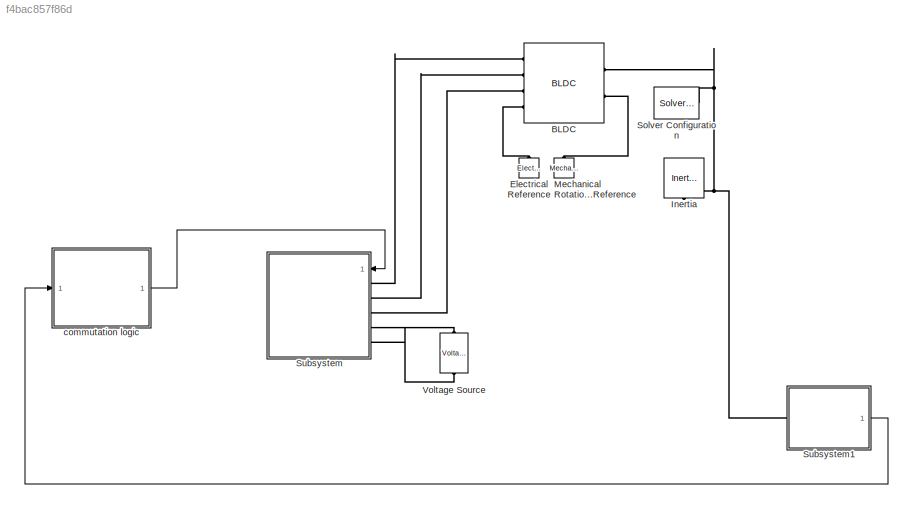
MODEL slx_f4bac857f86d
KIND model
CONFIG AbsTol = auto
CONFIG EnableMultiTasking = off
CONFIG FixedStep = auto
CONFIG MaxStep = auto
CONFIG MinStep = auto
CONFIG RelTol = 1e-3
CONFIG SampleTimeConstraint = Unconstrained
CONFIG SolverName = ode1
CONFIG StartTime = 0.0
CONFIG StopTime = 0.2
BLOCK [Reference] BLDC  REF=ee_lib/Electromechanical/Permanent Magnet/BLDC
  Ports = [0, 0, 0, 0, 0, 4, 2]
  SourceBlock = ee_lib/Electromechanical/Permanent Magnet/BLDC
  SourceProductBaseCode = PS
  SourceType = BLDC
BLOCK [Reference] Electrical Reference  REF=fl_lib/Electrical/Electrical Elements/Electrical Reference
  NameLocation = right
  Ports = [0, 0, 0, 0, 0, 1]
  SourceBlock = fl_lib/Electrical/Electrical Elements/Electrical Reference
  SourceProductBaseCode = SS
  SourceType = Electrical Reference
BLOCK [Reference] Inertia  REF=fl_lib/Mechanical/Rotational Elements/Inertia
  NameLocation = left
  Ports = [0, 0, 0, 0, 0, 1]
  SourceBlock = fl_lib/Mechanical/Rotational Elements/Inertia
  SourceProductBaseCode = SS
  SourceType = Inertia
BLOCK [Reference] Mechanical Rotational Reference  REF=fl_lib/Mechanical/Rotational Elements/Mechanical
Rotational Reference
  NameLocation = right
  Ports = [0, 0, 0, 0, 0, 1]
  SourceBlock = fl_lib/Mechanical/Rotational Elements/Mechanical\nRotational Reference
  SourceProductBaseCode = SS
  SourceType = Mechanical\nRotational Reference
BLOCK [Reference] Solver Configuration  REF=nesl_utility/Solver
Configuration
  Ports = [0, 0, 0, 0, 0, 0, 1]
  SourceBlock = nesl_utility/Solver\nConfiguration
  SourceProductBaseCode = PW,SS
  SourceType = Solver\nConfiguration
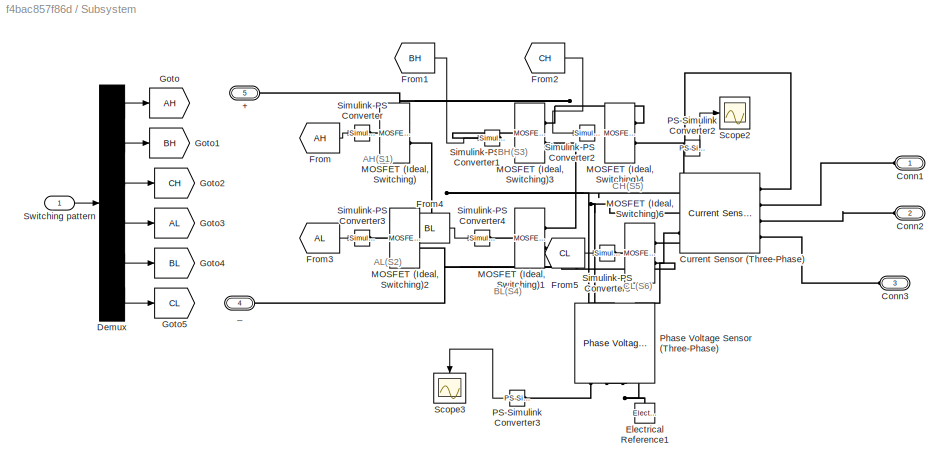
BLOCK [SubSystem] Subsystem
  NameLocation = top
  Ports = [1, 0, 0, 0, 0, 5]
  RequestExecContextInheritance = off
BLOCK [PMIOPort] Subsystem/+
  Port = 5
  Side = Left
BLOCK [PMIOPort] Subsystem/Conn1
  Side = Left
BLOCK [PMIOPort] Subsystem/Conn2
  Port = 2
  Side = Left
BLOCK [PMIOPort] Subsystem/Conn3
  Port = 3
  Side = Left
BLOCK [Reference] Subsystem/Current Sensor (Three-Phase)  REF=ee_lib/Sensors &
Transducers/Current Sensor
(Three-Phase)
  Ports = [0, 0, 0, 0, 0, 3, 4]
  SourceBlock = ee_lib/Sensors &\nTransducers/Current Sensor\n(Three-Phase)
  SourceProductBaseCode = PS
  SourceType = Current Sensor\n(Three-Phase)
BLOCK [Demux] Subsystem/Demux
  Outputs = 6
  Ports = [1, 6]
BLOCK [Reference] Subsystem/Electrical Reference1  REF=fl_lib/Electrical/Electrical Elements/Electrical Reference
  NameLocation = right
  Ports = [0, 0, 0, 0, 0, 1]
  SourceBlock = fl_lib/Electrical/Electrical Elements/Electrical Reference
  SourceProductBaseCode = SS
  SourceType = Electrical Reference
BLOCK [From] Subsystem/From
  GotoTag = AH
BLOCK [From] Subsystem/From1
  GotoTag = BH
BLOCK [From] Subsystem/From2
  GotoTag = CH
BLOCK [From] Subsystem/From3
  GotoTag = AL
BLOCK [From] Subsystem/From4
  GotoTag = BL
BLOCK [From] Subsystem/From5
  GotoTag = CL
BLOCK [Goto] Subsystem/Goto
  GotoTag = AH
BLOCK [Goto] Subsystem/Goto1
  GotoTag = BH
BLOCK [Goto] Subsystem/Goto2
  GotoTag = CH
BLOCK [Goto] Subsystem/Goto3
  GotoTag = AL
BLOCK [Goto] Subsystem/Goto4
  GotoTag = BL
BLOCK [Goto] Subsystem/Goto5
  GotoTag = CL
BLOCK [Reference] Subsystem/MOSFET (Ideal, Switching)  REF=ee_lib/Semiconductors &
Converters/MOSFET
(Ideal,
Switching)
  Ports = [0, 0, 0, 0, 0, 1, 2]
  SourceBlock = ee_lib/Semiconductors &\nConverters/MOSFET\n(Ideal,\nSwitching)
  SourceProductBaseCode = PS
  SourceType = MOSFET\n(Ideal,\nSwitching)
BLOCK [Reference] Subsystem/MOSFET (Ideal, Switching)1  REF=ee_lib/Semiconductors &
Converters/MOSFET
(Ideal,
Switching)
  Ports = [0, 0, 0, 0, 0, 1, 2]
  SourceBlock = ee_lib/Semiconductors &\nConverters/MOSFET\n(Ideal,\nSwitching)
  SourceProductBaseCode = PS
  SourceType = MOSFET\n(Ideal,\nSwitching)
BLOCK [Reference] Subsystem/MOSFET (Ideal, Switching)2  REF=ee_lib/Semiconductors &
Converters/MOSFET
(Ideal,
Switching)
  Ports = [0, 0, 0, 0, 0, 1, 2]
  SourceBlock = ee_lib/Semiconductors &\nConverters/MOSFET\n(Ideal,\nSwitching)
  SourceProductBaseCode = PS
  SourceType = MOSFET\n(Ideal,\nSwitching)
BLOCK [Reference] Subsystem/MOSFET (Ideal, Switching)3  REF=ee_lib/Semiconductors &
Converters/MOSFET
(Ideal,
Switching)
  Ports = [0, 0, 0, 0, 0, 1, 2]
  SourceBlock = ee_lib/Semiconductors &\nConverters/MOSFET\n(Ideal,\nSwitching)
  SourceProductBaseCode = PS
  SourceType = MOSFET\n(Ideal,\nSwitching)
BLOCK [Reference] Subsystem/MOSFET (Ideal, Switching)4  REF=ee_lib/Semiconductors &
Converters/MOSFET
(Ideal,
Switching)
  Ports = [0, 0, 0, 0, 0, 1, 2]
  SourceBlock = ee_lib/Semiconductors &\nConverters/MOSFET\n(Ideal,\nSwitching)
  SourceProductBaseCode = PS
  SourceType = MOSFET\n(Ideal,\nSwitching)
BLOCK [Reference] Subsystem/MOSFET (Ideal, Switching)6  REF=ee_lib/Semiconductors &
Converters/MOSFET
(Ideal,
Switching)
  Ports = [0, 0, 0, 0, 0, 1, 2]
  SourceBlock = ee_lib/Semiconductors &\nConverters/MOSFET\n(Ideal,\nSwitching)
  SourceProductBaseCode = PS
  SourceType = MOSFET\n(Ideal,\nSwitching)
BLOCK [Reference] Subsystem/PS-Simulink Converter2  REF=nesl_utility/PS-Simulink
Converter
  Ports = [0, 1, 0, 0, 0, 1]
  SourceBlock = nesl_utility/PS-Simulink\nConverter
  SourceProductBaseCode = PW,SS
  SourceType = PS-Simulink\nConverter
BLOCK [Reference] Subsystem/PS-Simulink Converter3  REF=nesl_utility/PS-Simulink
Converter
  NameLocation = top
  Ports = [0, 1, 0, 0, 0, 1]
  SourceBlock = nesl_utility/PS-Simulink\nConverter
  SourceProductBaseCode = PW,SS
  SourceType = PS-Simulink\nConverter
BLOCK [Reference] Subsystem/Phase Voltage Sensor (Three-Phase)  REF=ee_lib/Sensors &
Transducers/Phase Voltage Sensor
(Three-Phase)
  NameLocation = right
  Ports = [0, 0, 0, 0, 0, 3, 4]
  SourceBlock = ee_lib/Sensors &\nTransducers/Phase Voltage Sensor\n(Three-Phase)
  SourceProductBaseCode = PS
  SourceType = Phase Voltage Sensor\n(Three-Phase)
BLOCK [Scope] Subsystem/Scope2
  Floating = off
  NumInputPorts = 1
  Ports = [1]
  ScopeSpecificationString = Simulink.scopes.TimeScopeBlockCfg('CurrentConfiguration', extmgr.ConfigurationSet(extmgr.Configuration('Core','General UI',true),extmgr.Configuration('Core','Source UI',true),extmgr.Configuration('Sources','WiredSimulink',true,'DataLoggingVariableName','ScopeData2'),extmgr.Configuration('Visuals','Time Domain',true,'SerializedDisplays',{struct('MinYLimReal','-1.00000','MaxYLimReal','1.00000','YLab...<+1437ch>
BLOCK [Scope] Subsystem/Scope3
  Floating = off
  NameLocation = left
  NumInputPorts = 1
  Ports = [1]
  ScopeSpecificationString = Simulink.scopes.TimeScopeBlockCfg('CurrentConfiguration', extmgr.ConfigurationSet(extmgr.Configuration('Core','General UI',true),extmgr.Configuration('Core','Source UI',true),extmgr.Configuration('Sources','WiredSimulink',true,'DataLoggingVariableName','ScopeData3'),extmgr.Configuration('Visuals','Time Domain',true),extmgr.Configuration('Tools','Plot Navigation',true),extmgr.Configuration('Tools',...<+40ch>
BLOCK [Reference] Subsystem/Simulink-PS Converter  REF=nesl_utility/Simulink-PS
Converter
  Ports = [1, 0, 0, 0, 0, 0, 1]
  SourceBlock = nesl_utility/Simulink-PS\nConverter
  SourceProductBaseCode = PW,SS
  SourceType = Simulink-PS\nConverter
BLOCK [Reference] Subsystem/Simulink-PS Converter1  REF=nesl_utility/Simulink-PS
Converter
  Ports = [1, 0, 0, 0, 0, 0, 1]
  SourceBlock = nesl_utility/Simulink-PS\nConverter
  SourceProductBaseCode = PW,SS
  SourceType = Simulink-PS\nConverter
BLOCK [Reference] Subsystem/Simulink-PS Converter2  REF=nesl_utility/Simulink-PS
Converter
  Ports = [1, 0, 0, 0, 0, 0, 1]
  SourceBlock = nesl_utility/Simulink-PS\nConverter
  SourceProductBaseCode = PW,SS
  SourceType = Simulink-PS\nConverter
BLOCK [Reference] Subsystem/Simulink-PS Converter3  REF=nesl_utility/Simulink-PS
Converter
  Ports = [1, 0, 0, 0, 0, 0, 1]
  SourceBlock = nesl_utility/Simulink-PS\nConverter
  SourceProductBaseCode = PW,SS
  SourceType = Simulink-PS\nConverter
BLOCK [Reference] Subsystem/Simulink-PS Converter4  REF=nesl_utility/Simulink-PS
Converter
  Ports = [1, 0, 0, 0, 0, 0, 1]
  SourceBlock = nesl_utility/Simulink-PS\nConverter
  SourceProductBaseCode = PW,SS
  SourceType = Simulink-PS\nConverter
BLOCK [Reference] Subsystem/Simulink-PS Converter5  REF=nesl_utility/Simulink-PS
Converter
  Ports = [1, 0, 0, 0, 0, 0, 1]
  SourceBlock = nesl_utility/Simulink-PS\nConverter
  SourceProductBaseCode = PW,SS
  SourceType = Simulink-PS\nConverter
BLOCK [Inport] Subsystem/Switching pattern
BLOCK [PMIOPort] Subsystem/_
  Port = 4
  Side = Left
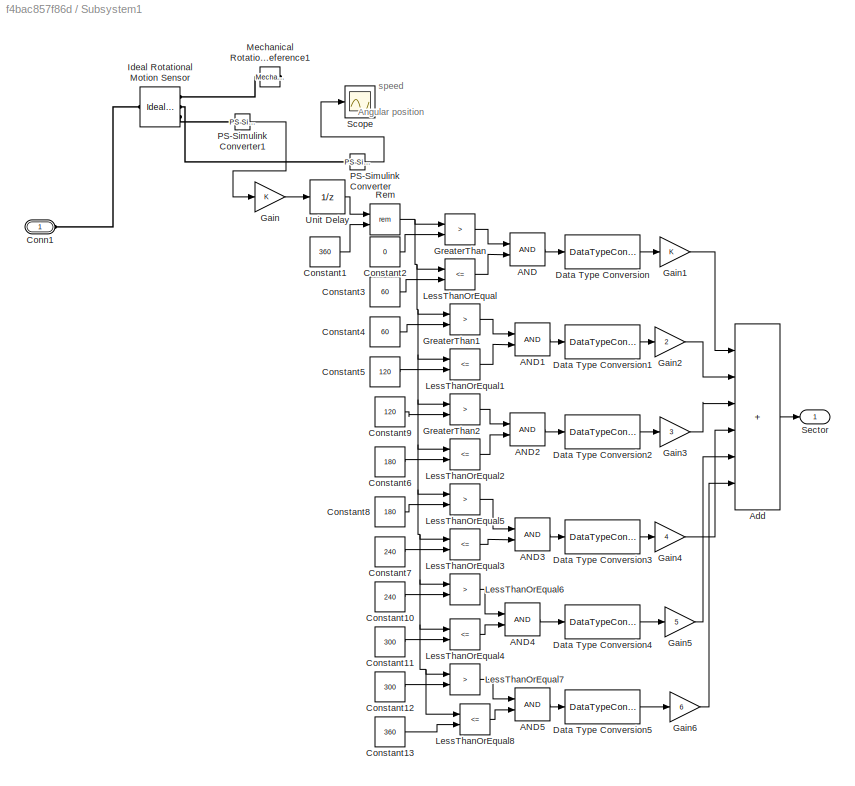
BLOCK [SubSystem] Subsystem1
  Ports = [0, 1, 0, 0, 0, 1]
  RequestExecContextInheritance = off
BLOCK [Logic] Subsystem1/AND
  AllPortsSameDT = off
  OutDataTypeStr = boolean
  Ports = [2, 1]
BLOCK [Logic] Subsystem1/AND1
  AllPortsSameDT = off
  OutDataTypeStr = boolean
  Ports = [2, 1]
BLOCK [Logic] Subsystem1/AND2
  AllPortsSameDT = off
  OutDataTypeStr = boolean
  Ports = [2, 1]
BLOCK [Logic] Subsystem1/AND3
  AllPortsSameDT = off
  OutDataTypeStr = boolean
  Ports = [2, 1]
BLOCK [Logic] Subsystem1/AND4
  AllPortsSameDT = off
  OutDataTypeStr = boolean
  Ports = [2, 1]
BLOCK [Logic] Subsystem1/AND5
  AllPortsSameDT = off
  OutDataTypeStr = boolean
  Ports = [2, 1]
BLOCK [Sum] Subsystem1/Add
  IconShape = rectangular
  Inputs = ++++++
  Ports = [6, 1]
BLOCK [PMIOPort] Subsystem1/Conn1
  Side = Left
BLOCK [Constant] Subsystem1/Constant1
  Value = 360
BLOCK [Constant] Subsystem1/Constant10
  Value = 240
BLOCK [Constant] Subsystem1/Constant11
  Value = 300
BLOCK [Constant] Subsystem1/Constant12
  Value = 300
BLOCK [Constant] Subsystem1/Constant13
  Value = 360
BLOCK [Constant] Subsystem1/Constant2
  Value = 0
BLOCK [Constant] Subsystem1/Constant3
  Value = 60
BLOCK [Constant] Subsystem1/Constant4
  Value = 60
BLOCK [Constant] Subsystem1/Constant5
  Value = 120
BLOCK [Constant] Subsystem1/Constant6
  Value = 180
BLOCK [Constant] Subsystem1/Constant7
  Value = 240
BLOCK [Constant] Subsystem1/Constant8
  Value = 180
BLOCK [Constant] Subsystem1/Constant9
  Value = 120
BLOCK [DataTypeConversion] Subsystem1/Data Type Conversion
  RndMeth = Floor
  SaturateOnIntegerOverflow = off
BLOCK [DataTypeConversion] Subsystem1/Data Type Conversion1
  RndMeth = Floor
  SaturateOnIntegerOverflow = off
BLOCK [DataTypeConversion] Subsystem1/Data Type Conversion2
  RndMeth = Floor
  SaturateOnIntegerOverflow = off
BLOCK [DataTypeConversion] Subsystem1/Data Type Conversion3
  RndMeth = Floor
  SaturateOnIntegerOverflow = off
BLOCK [DataTypeConversion] Subsystem1/Data Type Conversion4
  RndMeth = Floor
  SaturateOnIntegerOverflow = off
BLOCK [DataTypeConversion] Subsystem1/Data Type Conversion5
  RndMeth = Floor
  SaturateOnIntegerOverflow = off
BLOCK [Gain] Subsystem1/Gain
BLOCK [Gain] Subsystem1/Gain1
BLOCK [Gain] Subsystem1/Gain2
  Gain = 2
BLOCK [Gain] Subsystem1/Gain3
  Gain = 3
BLOCK [Gain] Subsystem1/Gain4
  Gain = 4
BLOCK [Gain] Subsystem1/Gain5
  Gain = 5
BLOCK [Gain] Subsystem1/Gain6
  Gain = 6
BLOCK [RelationalOperator] Subsystem1/GreaterThan
  InputSameDT = off
  Operator = >
  OutDataTypeStr = boolean
  Ports = [2, 1]
  RndMeth = Simplest
BLOCK [RelationalOperator] Subsystem1/GreaterThan1
  InputSameDT = off
  Operator = >
  OutDataTypeStr = boolean
  Ports = [2, 1]
  RndMeth = Simplest
BLOCK [RelationalOperator] Subsystem1/GreaterThan2
  InputSameDT = off
  Operator = >
  OutDataTypeStr = boolean
  Ports = [2, 1]
  RndMeth = Simplest
BLOCK [Reference] Subsystem1/Ideal Rotational Motion Sensor  REF=fl_lib/Mechanical/Mechanical Sensors/Ideal Rotational
Motion Sensor
  Ports = [0, 0, 0, 0, 0, 1, 3]
  SourceBlock = fl_lib/Mechanical/Mechanical Sensors/Ideal Rotational\nMotion Sensor
  SourceProductBaseCode = SS
  SourceType = Ideal Rotational\nMotion Sensor
BLOCK [RelationalOperator] Subsystem1/LessThanOrEqual
  InputSameDT = off
  Operator = <=
  OutDataTypeStr = boolean
  Ports = [2, 1]
  RndMeth = Simplest
BLOCK [RelationalOperator] Subsystem1/LessThanOrEqual1
  InputSameDT = off
  Operator = <=
  OutDataTypeStr = boolean
  Ports = [2, 1]
  RndMeth = Simplest
BLOCK [RelationalOperator] Subsystem1/LessThanOrEqual2
  InputSameDT = off
  Operator = <=
  OutDataTypeStr = boolean
  Ports = [2, 1]
  RndMeth = Simplest
BLOCK [RelationalOperator] Subsystem1/LessThanOrEqual3
  InputSameDT = off
  Operator = <=
  OutDataTypeStr = boolean
  Ports = [2, 1]
  RndMeth = Simplest
BLOCK [RelationalOperator] Subsystem1/LessThanOrEqual4
  InputSameDT = off
  Operator = <=
  OutDataTypeStr = boolean
  Ports = [2, 1]
  RndMeth = Simplest
BLOCK [RelationalOperator] Subsystem1/LessThanOrEqual5
  InputSameDT = off
  Operator = >
  OutDataTypeStr = boolean
  Ports = [2, 1]
  RndMeth = Simplest
BLOCK [RelationalOperator] Subsystem1/LessThanOrEqual6
  InputSameDT = off
  Operator = >
  OutDataTypeStr = boolean
  Ports = [2, 1]
  RndMeth = Simplest
BLOCK [RelationalOperator] Subsystem1/LessThanOrEqual7
  InputSameDT = off
  Operator = >
  OutDataTypeStr = boolean
  Ports = [2, 1]
  RndMeth = Simplest
BLOCK [RelationalOperator] Subsystem1/LessThanOrEqual8
  InputSameDT = off
  Operator = <=
  OutDataTypeStr = boolean
  Ports = [2, 1]
  RndMeth = Simplest
BLOCK [Reference] Subsystem1/Mechanical Rotational Reference1  REF=fl_lib/Mechanical/Rotational Elements/Mechanical
Rotational Reference
  NameLocation = top
  Ports = [0, 0, 0, 0, 0, 1]
  SourceBlock = fl_lib/Mechanical/Rotational Elements/Mechanical\nRotational Reference
  SourceProductBaseCode = SS
  SourceType = Mechanical\nRotational Reference
BLOCK [Reference] Subsystem1/PS-Simulink Converter  REF=nesl_utility/PS-Simulink
Converter
  Ports = [0, 1, 0, 0, 0, 1]
  SourceBlock = nesl_utility/PS-Simulink\nConverter
  SourceProductBaseCode = PW,SS
  SourceType = PS-Simulink\nConverter
BLOCK [Reference] Subsystem1/PS-Simulink Converter1  REF=nesl_utility/PS-Simulink
Converter
  Ports = [0, 1, 0, 0, 0, 1]
  SourceBlock = nesl_utility/PS-Simulink\nConverter
  SourceProductBaseCode = PW,SS
  SourceType = PS-Simulink\nConverter
BLOCK [Math] Subsystem1/Rem
  Operator = rem
  Ports = [2, 1]
BLOCK [Scope] Subsystem1/Scope
  Floating = off
  NumInputPorts = 1
  Ports = [1]
  ScopeSpecificationString = Simulink.scopes.TimeScopeBlockCfg('CurrentConfiguration', extmgr.ConfigurationSet(extmgr.Configuration('Core','General UI',true),extmgr.Configuration('Core','Source UI',true),extmgr.Configuration('Sources','WiredSimulink',true),extmgr.Configuration('Visuals','Time Domain',true),extmgr.Configuration('Tools','Plot Navigation',true),extmgr.Configuration('Tools','Measurements',true)),'Version','2021a'...<+1ch>
BLOCK [Outport] Subsystem1/Sector
BLOCK [UnitDelay] Subsystem1/Unit Delay
  HasFrameUpgradeWarning = on
  SampleTime = -1
BLOCK [Reference] Voltage Source  REF=ee_lib/Sources/Voltage Source
  NameLocation = right
  Ports = [0, 0, 0, 0, 0, 1, 1]
  SourceBlock = ee_lib/Sources/Voltage Source
  SourceProductBaseCode = PS
  SourceType = Voltage Source
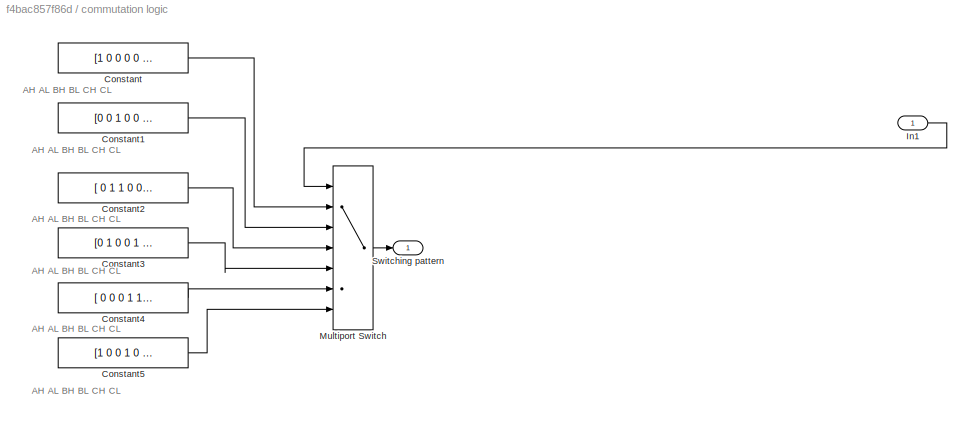
BLOCK [SubSystem] commutation logic
  Ports = [1, 1]
  RequestExecContextInheritance = off
BLOCK [Constant] commutation logic/Constant
  Value = [1 0 0 0 0 1]
BLOCK [Constant] commutation logic/Constant1
  Value = [0 0 1 0 0 1]
BLOCK [Constant] commutation logic/Constant2
  Value = [ 0 1 1 0 0 0 ]
BLOCK [Constant] commutation logic/Constant3
  Value = [0 1 0 0 1 0 ]
BLOCK [Constant] commutation logic/Constant4
  Value = [ 0 0 0 1 1 0 ]
BLOCK [Constant] commutation logic/Constant5
  Value = [1 0 0 1 0 0]
BLOCK [Inport] commutation logic/In1
BLOCK [MultiPortSwitch] commutation logic/Multiport Switch
  DiagnosticForDefault = None
  InputSameDT = off
  Inputs = 6
  Ports = [7, 1]
  SaturateOnIntegerOverflow = off
BLOCK [Outport] commutation logic/Switching pattern
ANNOTATION Subsystem: AH(S1)
ANNOTATION Subsystem: AL(S2)
ANNOTATION Subsystem: BH(S3)
ANNOTATION Subsystem: BL(S4)
ANNOTATION Subsystem: CH(S5)
ANNOTATION Subsystem: CL(S6)
ANNOTATION Subsystem1: Angular position
ANNOTATION Subsystem1: speed
ANNOTATION commutation logic: AH AL BH BL CH CL
LINE Subsystem/Demux:1 -> Subsystem/Goto:1
LINE Subsystem/Demux:2 -> Subsystem/Goto1:1
LINE Subsystem/Demux:3 -> Subsystem/Goto2:1
LINE Subsystem/Demux:4 -> Subsystem/Goto3:1
LINE Subsystem/Demux:5 -> Subsystem/Goto4:1
LINE Subsystem/Demux:6 -> Subsystem/Goto5:1
LINE Subsystem/From1:1 -> Subsystem/Simulink-PS Converter1:1
LINE Subsystem/From2:1 -> Subsystem/Simulink-PS Converter2:1
LINE Subsystem/From3:1 -> Subsystem/Simulink-PS Converter3:1
LINE Subsystem/From4:1 -> Subsystem/Simulink-PS Converter4:1
LINE Subsystem/From5:1 -> Subsystem/Simulink-PS Converter5:1
LINE Subsystem/From:1 -> Subsystem/Simulink-PS Converter:1
LINE Subsystem/PS-Simulink Converter2:1 -> Subsystem/Scope2:1
LINE Subsystem/PS-Simulink Converter3:1 -> Subsystem/Scope3:1
LINE Subsystem/Switching pattern:1 -> Subsystem/Demux:1
LINE Subsystem1/AND1:1 -> Subsystem1/Data Type Conversion1:1
LINE Subsystem1/AND2:1 -> Subsystem1/Data Type Conversion2:1
LINE Subsystem1/AND3:1 -> Subsystem1/Data Type Conversion3:1
LINE Subsystem1/AND4:1 -> Subsystem1/Data Type Conversion4:1
LINE Subsystem1/AND5:1 -> Subsystem1/Data Type Conversion5:1
LINE Subsystem1/AND:1 -> Subsystem1/Data Type Conversion:1
LINE Subsystem1/Add:1 -> Subsystem1/Sector:1
LINE Subsystem1/Constant10:1 -> Subsystem1/LessThanOrEqual6:2
LINE Subsystem1/Constant11:1 -> Subsystem1/LessThanOrEqual4:2
LINE Subsystem1/Constant12:1 -> Subsystem1/LessThanOrEqual7:2
LINE Subsystem1/Constant13:1 -> Subsystem1/LessThanOrEqual8:2
LINE Subsystem1/Constant1:1 -> Subsystem1/Rem:2
LINE Subsystem1/Constant2:1 -> Subsystem1/GreaterThan:2
LINE Subsystem1/Constant3:1 -> Subsystem1/LessThanOrEqual:2
LINE Subsystem1/Constant4:1 -> Subsystem1/GreaterThan1:2
LINE Subsystem1/Constant5:1 -> Subsystem1/LessThanOrEqual1:2
LINE Subsystem1/Constant6:1 -> Subsystem1/LessThanOrEqual2:2
LINE Subsystem1/Constant7:1 -> Subsystem1/LessThanOrEqual3:2
LINE Subsystem1/Constant8:1 -> Subsystem1/LessThanOrEqual5:2
LINE Subsystem1/Constant9:1 -> Subsystem1/GreaterThan2:2
LINE Subsystem1/Data Type Conversion1:1 -> Subsystem1/Gain2:1
LINE Subsystem1/Data Type Conversion2:1 -> Subsystem1/Gain3:1
LINE Subsystem1/Data Type Conversion3:1 -> Subsystem1/Gain4:1
LINE Subsystem1/Data Type Conversion4:1 -> Subsystem1/Gain5:1
LINE Subsystem1/Data Type Conversion5:1 -> Subsystem1/Gain6:1
LINE Subsystem1/Data Type Conversion:1 -> Subsystem1/Gain1:1
LINE Subsystem1/Gain1:1 -> Subsystem1/Add:1
LINE Subsystem1/Gain2:1 -> Subsystem1/Add:2
LINE Subsystem1/Gain3:1 -> Subsystem1/Add:3
LINE Subsystem1/Gain4:1 -> Subsystem1/Add:4
LINE Subsystem1/Gain5:1 -> Subsystem1/Add:5
LINE Subsystem1/Gain6:1 -> Subsystem1/Add:6
LINE Subsystem1/Gain:1 -> Subsystem1/Unit Delay:1
LINE Subsystem1/GreaterThan1:1 -> Subsystem1/AND1:1
LINE Subsystem1/GreaterThan2:1 -> Subsystem1/AND2:1
LINE Subsystem1/GreaterThan:1 -> Subsystem1/AND:1
LINE Subsystem1/LessThanOrEqual1:1 -> Subsystem1/AND1:2
LINE Subsystem1/LessThanOrEqual2:1 -> Subsystem1/AND2:2
LINE Subsystem1/LessThanOrEqual3:1 -> Subsystem1/AND3:2
LINE Subsystem1/LessThanOrEqual4:1 -> Subsystem1/AND4:2
LINE Subsystem1/LessThanOrEqual5:1 -> Subsystem1/AND3:1
LINE Subsystem1/LessThanOrEqual6:1 -> Subsystem1/AND4:1
LINE Subsystem1/LessThanOrEqual7:1 -> Subsystem1/AND5:1
LINE Subsystem1/LessThanOrEqual8:1 -> Subsystem1/AND5:2
LINE Subsystem1/LessThanOrEqual:1 -> Subsystem1/AND:2
LINE Subsystem1/PS-Simulink Converter1:1 -> Subsystem1/Gain:1
LINE Subsystem1/PS-Simulink Converter:1 -> Subsystem1/Scope:1
NET Subsystem1/Rem:1 -> Subsystem1/GreaterThan1:1, Subsystem1/GreaterThan2:1, Subsystem1/GreaterThan:1, Subsystem1/LessThanOrEqual1:1, Subsystem1/LessThanOrEqual2:1, Subsystem1/LessThanOrEqual3:1, Subsystem1/LessThanOrEqual4:1, Subsystem1/LessThanOrEqual5:1, Subsystem1/LessThanOrEqual6:1, Subsystem1/LessThanOrEqual7:1, Subsystem1/LessThanOrEqual8:1, Subsystem1/LessThanOrEqual:1
LINE Subsystem1/Unit Delay:1 -> Subsystem1/Rem:1
LINE Subsystem1:1 -> commutation logic:1
LINE commutation logic/Constant1:1 -> commutation logic/Multiport Switch:3
LINE commutation logic/Constant2:1 -> commutation logic/Multiport Switch:4
LINE commutation logic/Constant3:1 -> commutation logic/Multiport Switch:5
LINE commutation logic/Constant4:1 -> commutation logic/Multiport Switch:6
LINE commutation logic/Constant5:1 -> commutation logic/Multiport Switch:7
LINE commutation logic/Constant:1 -> commutation logic/Multiport Switch:2
LINE commutation logic/In1:1 -> commutation logic/Multiport Switch:1
LINE commutation logic/Multiport Switch:1 -> commutation logic/Switching pattern:1
LINE commutation logic:1 -> Subsystem:1
PLINE BLDC:LConn1 -- Subsystem:LConn1
PLINE BLDC:LConn2 -- Subsystem:LConn2
PLINE BLDC:LConn3 -- Subsystem:LConn3
PLINE BLDC:LConn4 -- Electrical Reference:LConn1
PNET net1: BLDC:RConn1 -- Inertia:LConn1 -- Solver Configuration:RConn1 -- Subsystem1:LConn1
PLINE BLDC:RConn2 -- Mechanical Rotational Reference:LConn1
PNET net2: Subsystem/+:RConn1 -- Subsystem/MOSFET (Ideal, Switching)3:RConn1 -- Subsystem/MOSFET (Ideal, Switching)4:RConn1 -- Subsystem/MOSFET (Ideal, Switching):RConn1
PLINE Subsystem/Conn1:RConn1 -- Subsystem/Current Sensor (Three-Phase):RConn2
PLINE Subsystem/Conn2:RConn1 -- Subsystem/Current Sensor (Three-Phase):RConn3
PLINE Subsystem/Conn3:RConn1 -- Subsystem/Current Sensor (Three-Phase):RConn4
PNET net3: Subsystem/Current Sensor (Three-Phase):LConn1 -- Subsystem/MOSFET (Ideal, Switching)2:RConn1 -- Subsystem/MOSFET (Ideal, Switching):RConn2 -- Subsystem/Phase Voltage Sensor (Three-Phase):LConn1
PNET net4: Subsystem/Current Sensor (Three-Phase):LConn2 -- Subsystem/MOSFET (Ideal, Switching)1:RConn1 -- Subsystem/MOSFET (Ideal, Switching)3:RConn2 -- Subsystem/Phase Voltage Sensor (Three-Phase):LConn2
PNET net5: Subsystem/Current Sensor (Three-Phase):LConn3 -- Subsystem/MOSFET (Ideal, Switching)4:RConn2 -- Subsystem/MOSFET (Ideal, Switching)6:RConn1 -- Subsystem/Phase Voltage Sensor (Three-Phase):LConn3
PLINE Subsystem/Current Sensor (Three-Phase):RConn1 -- Subsystem/PS-Simulink Converter2:LConn1
PNET net6: Subsystem/Electrical Reference1:LConn1 -- Subsystem/Phase Voltage Sensor (Three-Phase):RConn2 -- Subsystem/Phase Voltage Sensor (Three-Phase):RConn3 -- Subsystem/Phase Voltage Sensor (Three-Phase):RConn4
PLINE Subsystem/MOSFET (Ideal, Switching)1:LConn1 -- Subsystem/Simulink-PS Converter4:RConn1
PNET net7: Subsystem/MOSFET (Ideal, Switching)1:RConn2 -- Subsystem/MOSFET (Ideal, Switching)2:RConn2 -- Subsystem/MOSFET (Ideal, Switching)6:RConn2 -- Subsystem/_:RConn1
PLINE Subsystem/MOSFET (Ideal, Switching)2:LConn1 -- Subsystem/Simulink-PS Converter3:RConn1
PLINE Subsystem/MOSFET (Ideal, Switching)3:LConn1 -- Subsystem/Simulink-PS Converter1:RConn1
PLINE Subsystem/MOSFET (Ideal, Switching)6:LConn1 -- Subsystem/Simulink-PS Converter5:RConn1
PLINE Subsystem/MOSFET (Ideal, Switching):LConn1 -- Subsystem/Simulink-PS Converter:RConn1
PLINE Subsystem/PS-Simulink Converter3:LConn1 -- Subsystem/Phase Voltage Sensor (Three-Phase):RConn1
PLINE Subsystem1/Conn1:RConn1 -- Subsystem1/Ideal Rotational Motion Sensor:LConn1
PLINE Subsystem1/Ideal Rotational Motion Sensor:RConn1 -- Subsystem1/Mechanical Rotational Reference1:LConn1
PLINE Subsystem1/Ideal Rotational Motion Sensor:RConn2 -- Subsystem1/PS-Simulink Converter:LConn1
PLINE Subsystem1/Ideal Rotational Motion Sensor:RConn3 -- Subsystem1/PS-Simulink Converter1:LConn1
PLINE Subsystem:LConn4 -- Voltage Source:LConn1
PLINE Subsystem:LConn5 -- Voltage Source:RConn1
note: NET lines group one-source signal fan-out (src -> all destinations, sorted); 1:1 wires keep LINE; PNET lines group multi-terminal physical nets as a canonical sorted terminal list (undirected conserving connections); 2-terminal nets keep the pairwise PLINE form
